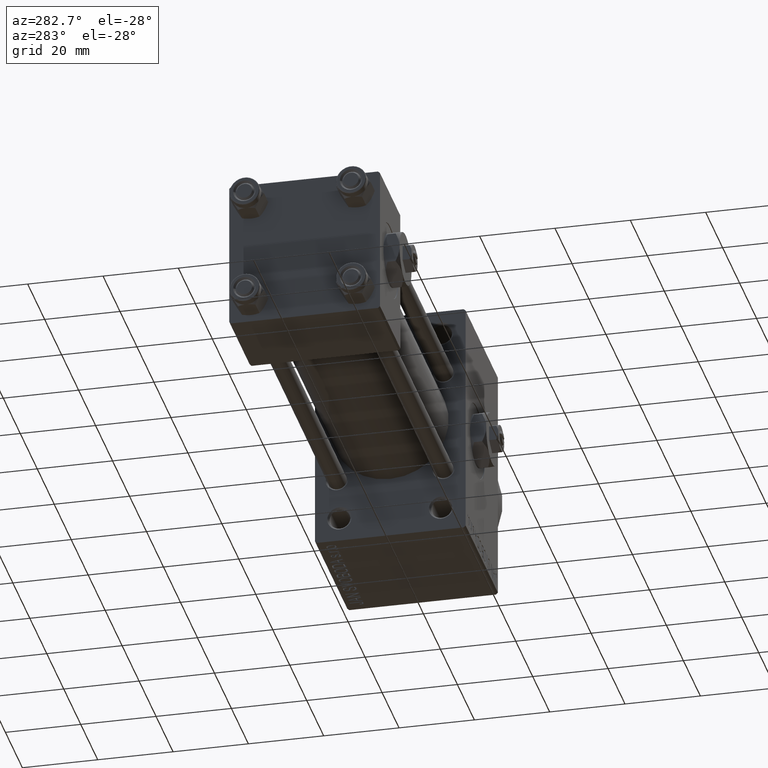
[diagram: clean part render]
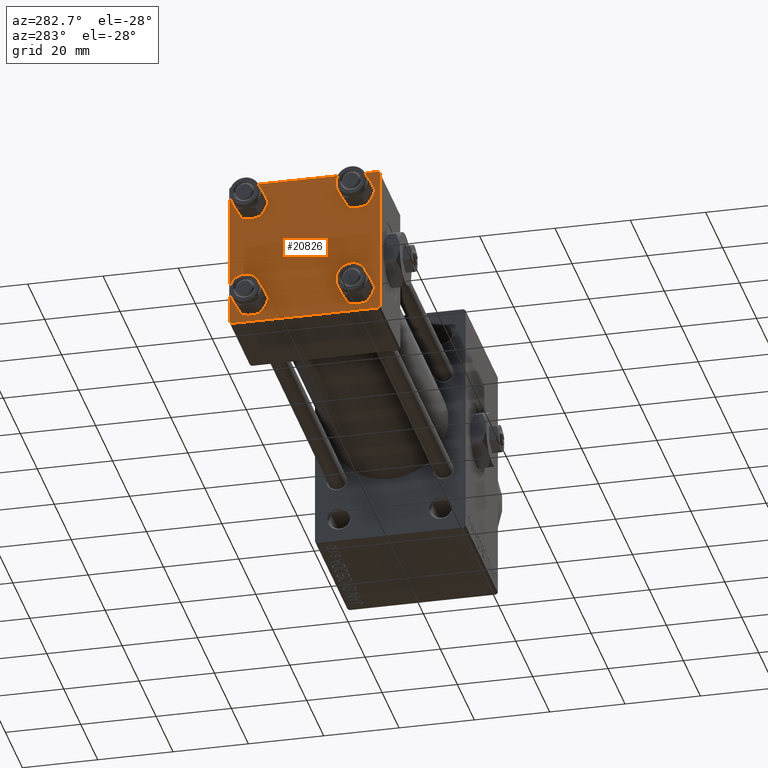
[diagram: same view with one face highlighted and labeled with its STEP entity id]
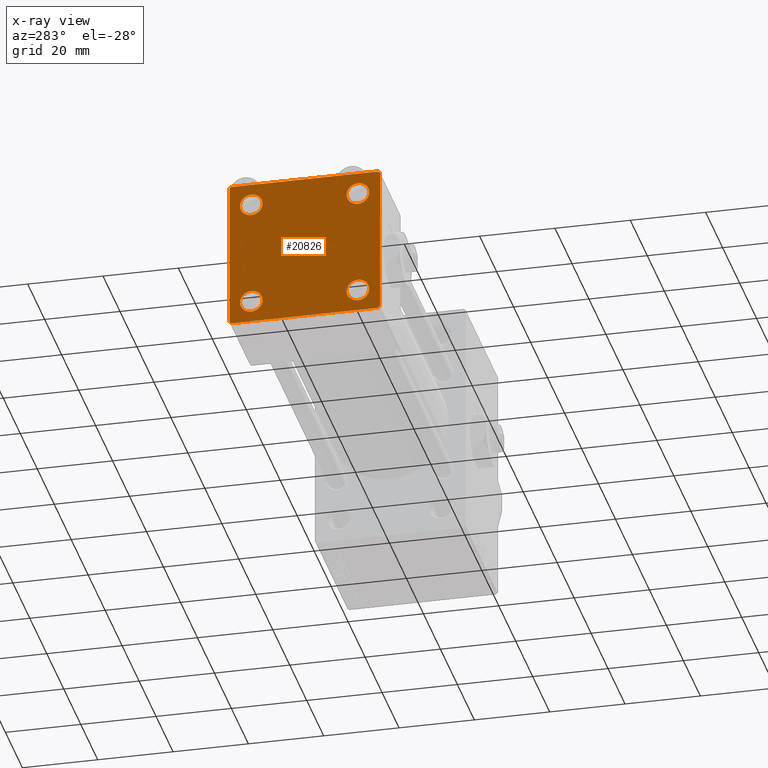
[diagram: x-ray of the same camera — body ghosted, the highlighted face saturated]
A machine part, auxiliary view. The second image highlights one B-rep face of the part: STEP entity #20826.
The next image is the same camera in x-ray: the body ghosted, the highlighted face saturated — about 0% of this face is hidden behind the body in this view.
In plain terms, the highlighted planar face has unit normal (-1, 0, 0).
Its self-contained STEP definition (entity closure, byte-faithful):
#813 = ORIENTED_EDGE ( 'NONE', *, *, #1216, .F. ) ;
#1216 = EDGE_CURVE ( 'NONE', #37974, #39400, #43043, .T. ) ;
#1517 = VECTOR ( 'NONE', #5811, 1000.000000000000114 ) ;
#2364 = EDGE_LOOP ( 'NONE', ( #43908, #12108 ) ) ;
#2397 = EDGE_CURVE ( 'NONE', #7766, #10892, #27430, .T. ) ;
#2493 = EDGE_CURVE ( 'NONE', #45161, #33352, #8564, .T. ) ;
#3169 = CIRCLE ( 'NONE', #40330, 2.999999999999983569 ) ;
#3536 = DIRECTION ( 'NONE',  ( 0.000000000000000000, 0.000000000000000000, 1.000000000000000000 ) ) ;
#4441 = CIRCLE ( 'NONE', #22594, 2.999999999999983569 ) ;
#4475 = CARTESIAN_POINT ( 'NONE',  ( 0.000000000000000000, 20.00000000000000000, -20.00000000000000711 ) ) ;
#4505 = VECTOR ( 'NONE', #27100, 1000.000000000000000 ) ;
#4812 = CARTESIAN_POINT ( 'NONE',  ( 0.000000000000000000, 19.50000000000000000, 20.00000000000000000 ) ) ;
#5195 = AXIS2_PLACEMENT_3D ( 'NONE', #42348, #7689, #37872 ) ;
#5709 = CARTESIAN_POINT ( 'NONE',  ( 0.000000000000000000, -19.75000000000020961, -19.74999999999979394 ) ) ;
#5811 = DIRECTION ( 'NONE',  ( -0.000000000000000000, 0.7071067811865500152, 0.7071067811865451302 ) ) ;
#5951 = DIRECTION ( 'NONE',  ( 0.000000000000000000, -0.7071067811865401342, 0.7071067811865549002 ) ) ;
#6219 = AXIS2_PLACEMENT_3D ( 'NONE', #34028, #7545, #15209 ) ;
#7020 = CARTESIAN_POINT ( 'NONE',  ( 0.000000000000000000, 14.14999999999999858, -14.15000000000000036 ) ) ;
#7505 = CARTESIAN_POINT ( 'NONE',  ( 0.000000000000000000, 20.00000000000000000, 20.00000000000000000 ) ) ;
#7545 = DIRECTION ( 'NONE',  ( 1.000000000000000000, 0.000000000000000000, 0.000000000000000000 ) ) ;
#7687 = CIRCLE ( 'NONE', #5195, 3.000000000000004441 ) ;
#7689 = DIRECTION ( 'NONE',  ( 1.000000000000000000, 0.000000000000000000, 0.000000000000000000 ) ) ;
#7766 = VERTEX_POINT ( 'NONE', #37473 ) ;
#8016 = VERTEX_POINT ( 'NONE', #33649 ) ;
#8481 = ORIENTED_EDGE ( 'NONE', *, *, #16870, .T. ) ;
#8564 = LINE ( 'NONE', #45975, #4505 ) ;
#8714 = ORIENTED_EDGE ( 'NONE', *, *, #46085, .T. ) ;
#8805 = LINE ( 'NONE', #46474, #1517 ) ;
#8889 = ORIENTED_EDGE ( 'NONE', *, *, #13577, .T. ) ;
#9106 = CARTESIAN_POINT ( 'NONE',  ( 0.000000000000000000, 20.00000000000000000, 20.00000000000000000 ) ) ;
#9193 = DIRECTION ( 'NONE',  ( 0.000000000000000000, -1.000000000000000000, 1.734723475976807094E-16 ) ) ;
#9692 = EDGE_LOOP ( 'NONE', ( #35382, #39930 ) ) ;
#10640 = FACE_BOUND ( 'NONE', #35324, .T. ) ;
#10892 = VERTEX_POINT ( 'NONE', #12127 ) ;
#11635 = CARTESIAN_POINT ( 'NONE',  ( 0.000000000000000000, 14.14999999999999858, -11.15000000000001812 ) ) ;
#11697 = DIRECTION ( 'NONE',  ( 0.000000000000000000, 0.000000000000000000, 1.000000000000000000 ) ) ;
#12108 = ORIENTED_EDGE ( 'NONE', *, *, #29721, .T. ) ;
#12125 = EDGE_CURVE ( 'NONE', #32923, #30496, #4441, .T. ) ;
#12127 = CARTESIAN_POINT ( 'NONE',  ( 0.000000000000000000, 14.14999999999999858, 11.15000000000001990 ) ) ;
#12269 = CARTESIAN_POINT ( 'NONE',  ( 0.000000000000000000, 14.14999999999999858, 14.15000000000000036 ) ) ;
#12370 = CARTESIAN_POINT ( 'NONE',  ( 0.000000000000000000, -20.00000000000000000, -19.49999999999999645 ) ) ;
#12664 = VECTOR ( 'NONE', #18574, 1000.000000000000000 ) ;
#12957 = CIRCLE ( 'NONE', #36653, 2.999999999999983569 ) ;
#13514 = VECTOR ( 'NONE', #29297, 1000.000000000000000 ) ;
#13577 = EDGE_CURVE ( 'NONE', #16512, #8016, #23283, .T. ) ;
#13679 = ORIENTED_EDGE ( 'NONE', *, *, #43124, .T. ) ;
#13770 = CARTESIAN_POINT ( 'NONE',  ( 0.000000000000000000, -14.14999999999999503, 11.15000000000002345 ) ) ;
#13987 = AXIS2_PLACEMENT_3D ( 'NONE', #12269, #16219, #34794 ) ;
#14809 = VECTOR ( 'NONE', #9193, 1000.000000000000000 ) ;
#14836 = DIRECTION ( 'NONE',  ( -0.000000000000000000, 0.000000000000000000, 1.000000000000000000 ) ) ;
#14912 = CIRCLE ( 'NONE', #6219, 2.999999999999983569 ) ;
#15060 = DIRECTION ( 'NONE',  ( 0.000000000000000000, 0.7071067811865425767, -0.7071067811865525687 ) ) ;
#15190 = ORIENTED_EDGE ( 'NONE', *, *, #27142, .T. ) ;
#15209 = DIRECTION ( 'NONE',  ( 0.000000000000000000, 0.000000000000000000, 1.000000000000000000 ) ) ;
#15510 = CARTESIAN_POINT ( 'NONE',  ( 0.000000000000000000, -19.49999999999999289, 19.99999999999998934 ) ) ;
#16204 = EDGE_CURVE ( 'NONE', #8016, #33352, #43858, .T. ) ;
#16219 = DIRECTION ( 'NONE',  ( 1.000000000000000000, 0.000000000000000000, 0.000000000000000000 ) ) ;
#16512 = VERTEX_POINT ( 'NONE', #34820 ) ;
#16870 = EDGE_CURVE ( 'NONE', #27627, #32331, #14912, .T. ) ;
#16964 = CIRCLE ( 'NONE', #22505, 2.999999999999983569 ) ;
#17564 = AXIS2_PLACEMENT_3D ( 'NONE', #27422, #35361, #34862 ) ;
#18231 = CARTESIAN_POINT ( 'NONE',  ( 0.000000000000000000, -14.14999999999999503, -17.15000000000000924 ) ) ;
#18292 = FACE_BOUND ( 'NONE', #2364, .T. ) ;
#18451 = CARTESIAN_POINT ( 'NONE',  ( 0.000000000000000000, 20.00000000000000000, -19.50000000000002132 ) ) ;
#18512 = CARTESIAN_POINT ( 'NONE',  ( -0.000000000000000000, 19.75000000000013500, 19.74999999999986144 ) ) ;
#18530 = DIRECTION ( 'NONE',  ( -1.000000000000000000, 0.000000000000000000, -0.000000000000000000 ) ) ;
#18574 = DIRECTION ( 'NONE',  ( -0.000000000000000000, -0.7071067811865524577, -0.7071067811865426878 ) ) ;
#18628 = LINE ( 'NONE', #7505, #13514 ) ;
#20065 = CARTESIAN_POINT ( 'NONE',  ( 0.000000000000000000, 14.14999999999999858, 14.15000000000000036 ) ) ;
#20216 = DIRECTION ( 'NONE',  ( 0.000000000000000000, -1.000000000000000000, -2.602085213965210149E-16 ) ) ;
#20826 = ADVANCED_FACE ( 'NONE', ( #29438, #26208, #10640, #18292, #30419 ), #33396, .T. ) ;
#22095 = DIRECTION ( 'NONE',  ( 0.000000000000000000, 0.000000000000000000, 1.000000000000000000 ) ) ;
#22340 = DIRECTION ( 'NONE',  ( 1.000000000000000000, 0.000000000000000000, 0.000000000000000000 ) ) ;
#22505 = AXIS2_PLACEMENT_3D ( 'NONE', #20065, #46122, #11697 ) ;
#22594 = AXIS2_PLACEMENT_3D ( 'NONE', #44741, #37274, #22904 ) ;
#22696 = VECTOR ( 'NONE', #20216, 1000.000000000000000 ) ;
#22904 = DIRECTION ( 'NONE',  ( 0.000000000000000000, 0.000000000000000000, 1.000000000000000000 ) ) ;
#23283 = LINE ( 'NONE', #4475, #14809 ) ;
#23647 = VERTEX_POINT ( 'NONE', #36268 ) ;
#24194 = EDGE_CURVE ( 'NONE', #44264, #23647, #45281, .T. ) ;
#24765 = ORIENTED_EDGE ( 'NONE', *, *, #35508, .T. ) ;
#26208 = FACE_BOUND ( 'NONE', #46718, .T. ) ;
#26740 = CARTESIAN_POINT ( 'NONE',  ( -0.000000000000000000, 19.74999999999986855, -19.75000000000014211 ) ) ;
#26854 = EDGE_CURVE ( 'NONE', #30496, #32923, #12957, .T. ) ;
#27100 = DIRECTION ( 'NONE',  ( 0.000000000000000000, 8.673617379884036705E-17, -1.000000000000000000 ) ) ;
#27142 = EDGE_CURVE ( 'NONE', #37974, #29048, #32711, .T. ) ;
#27422 = CARTESIAN_POINT ( 'NONE',  ( 0.000000000000000000, -14.14999999999999503, -14.15000000000000391 ) ) ;
#27430 = CIRCLE ( 'NONE', #13987, 2.999999999999983569 ) ;
#27492 = VERTEX_POINT ( 'NONE', #18451 ) ;
#27627 = VERTEX_POINT ( 'NONE', #30828 ) ;
#28768 = AXIS2_PLACEMENT_3D ( 'NONE', #33891, #18530, #14836 ) ;
#29048 = VERTEX_POINT ( 'NONE', #48568 ) ;
#29297 = DIRECTION ( 'NONE',  ( 0.000000000000000000, 0.000000000000000000, -1.000000000000000000 ) ) ;
#29438 = FACE_BOUND ( 'NONE', #9692, .T. ) ;
#29721 = EDGE_CURVE ( 'NONE', #10892, #7766, #16964, .T. ) ;
#30419 = FACE_OUTER_BOUND ( 'NONE', #47637, .T. ) ;
#30496 = VERTEX_POINT ( 'NONE', #38265 ) ;
#30828 = CARTESIAN_POINT ( 'NONE',  ( 0.000000000000000000, 14.14999999999999858, -17.14999999999998437 ) ) ;
#32331 = VERTEX_POINT ( 'NONE', #11635 ) ;
#32711 = LINE ( 'NONE', #18512, #35064 ) ;
#32923 = VERTEX_POINT ( 'NONE', #13770 ) ;
#33180 = ORIENTED_EDGE ( 'NONE', *, *, #2493, .F. ) ;
#33352 = VERTEX_POINT ( 'NONE', #12370 ) ;
#33396 = PLANE ( 'NONE',  #28768 ) ;
#33649 = CARTESIAN_POINT ( 'NONE',  ( 0.000000000000000000, -19.50000000000000711, -20.00000000000000000 ) ) ;
#33837 = CARTESIAN_POINT ( 'NONE',  ( 0.000000000000000000, -20.00000000000000355, 19.49999999999998224 ) ) ;
#33891 = CARTESIAN_POINT ( 'NONE',  ( 0.000000000000000000, 0.000000000000000000, 0.000000000000000000 ) ) ;
#34028 = CARTESIAN_POINT ( 'NONE',  ( 0.000000000000000000, 14.14999999999999858, -14.15000000000000036 ) ) ;
#34794 = DIRECTION ( 'NONE',  ( 0.000000000000000000, 0.000000000000000000, 1.000000000000000000 ) ) ;
#34820 = CARTESIAN_POINT ( 'NONE',  ( 0.000000000000000000, 19.50000000000000711, -20.00000000000000711 ) ) ;
#34862 = DIRECTION ( 'NONE',  ( 0.000000000000000000, 0.000000000000000000, 1.000000000000000000 ) ) ;
#35064 = VECTOR ( 'NONE', #15060, 999.9999999999998863 ) ;
#35324 = EDGE_LOOP ( 'NONE', ( #46389, #8481 ) ) ;
#35361 = DIRECTION ( 'NONE',  ( 1.000000000000000000, 0.000000000000000000, 0.000000000000000000 ) ) ;
#35382 = ORIENTED_EDGE ( 'NONE', *, *, #26854, .T. ) ;
#35508 = EDGE_CURVE ( 'NONE', #23647, #44264, #7687, .T. ) ;
#36268 = CARTESIAN_POINT ( 'NONE',  ( 0.000000000000000000, -14.14999999999999503, -11.15000000000000036 ) ) ;
#36653 = AXIS2_PLACEMENT_3D ( 'NONE', #40215, #22340, #22095 ) ;
#36972 = DIRECTION ( 'NONE',  ( 1.000000000000000000, 0.000000000000000000, 0.000000000000000000 ) ) ;
#37274 = DIRECTION ( 'NONE',  ( 1.000000000000000000, 0.000000000000000000, 0.000000000000000000 ) ) ;
#37473 = CARTESIAN_POINT ( 'NONE',  ( 0.000000000000000000, 14.14999999999999858, 17.14999999999998437 ) ) ;
#37872 = DIRECTION ( 'NONE',  ( 0.000000000000000000, 0.000000000000000000, 1.000000000000000000 ) ) ;
#37974 = VERTEX_POINT ( 'NONE', #4812 ) ;
#38265 = CARTESIAN_POINT ( 'NONE',  ( 0.000000000000000000, -14.14999999999999503, 17.14999999999998792 ) ) ;
#38271 = ORIENTED_EDGE ( 'NONE', *, *, #24194, .T. ) ;
#39400 = VERTEX_POINT ( 'NONE', #15510 ) ;
#39813 = ORIENTED_EDGE ( 'NONE', *, *, #16204, .T. ) ;
#39930 = ORIENTED_EDGE ( 'NONE', *, *, #12125, .T. ) ;
#40215 = CARTESIAN_POINT ( 'NONE',  ( 0.000000000000000000, -14.14999999999999503, 14.15000000000000391 ) ) ;
#40330 = AXIS2_PLACEMENT_3D ( 'NONE', #7020, #36972, #3536 ) ;
#41625 = LINE ( 'NONE', #26740, #12664 ) ;
#42348 = CARTESIAN_POINT ( 'NONE',  ( 0.000000000000000000, -14.14999999999999503, -14.15000000000000391 ) ) ;
#43043 = LINE ( 'NONE', #9106, #22696 ) ;
#43124 = EDGE_CURVE ( 'NONE', #45161, #39400, #8805, .T. ) ;
#43858 = LINE ( 'NONE', #5709, #46520 ) ;
#43908 = ORIENTED_EDGE ( 'NONE', *, *, #2397, .T. ) ;
#44264 = VERTEX_POINT ( 'NONE', #18231 ) ;
#44741 = CARTESIAN_POINT ( 'NONE',  ( 0.000000000000000000, -14.14999999999999503, 14.15000000000000391 ) ) ;
#44889 = ORIENTED_EDGE ( 'NONE', *, *, #48106, .T. ) ;
#45161 = VERTEX_POINT ( 'NONE', #33837 ) ;
#45281 = CIRCLE ( 'NONE', #17564, 3.000000000000004441 ) ;
#45975 = CARTESIAN_POINT ( 'NONE',  ( 0.000000000000000000, -20.00000000000000355, 19.99999999999998934 ) ) ;
#46085 = EDGE_CURVE ( 'NONE', #29048, #27492, #18628, .T. ) ;
#46122 = DIRECTION ( 'NONE',  ( 1.000000000000000000, 0.000000000000000000, 0.000000000000000000 ) ) ;
#46389 = ORIENTED_EDGE ( 'NONE', *, *, #48562, .T. ) ;
#46474 = CARTESIAN_POINT ( 'NONE',  ( -0.000000000000000000, -19.74999999999992539, 19.75000000000006395 ) ) ;
#46520 = VECTOR ( 'NONE', #5951, 1000.000000000000000 ) ;
#46718 = EDGE_LOOP ( 'NONE', ( #24765, #38271 ) ) ;
#47637 = EDGE_LOOP ( 'NONE', ( #8714, #44889, #8889, #39813, #33180, #13679, #813, #15190 ) ) ;
#48106 = EDGE_CURVE ( 'NONE', #27492, #16512, #41625, .T. ) ;
#48562 = EDGE_CURVE ( 'NONE', #32331, #27627, #3169, .T. ) ;
#48568 = CARTESIAN_POINT ( 'NONE',  ( 0.000000000000000000, 20.00000000000000000, 19.49999999999999289 ) ) ;